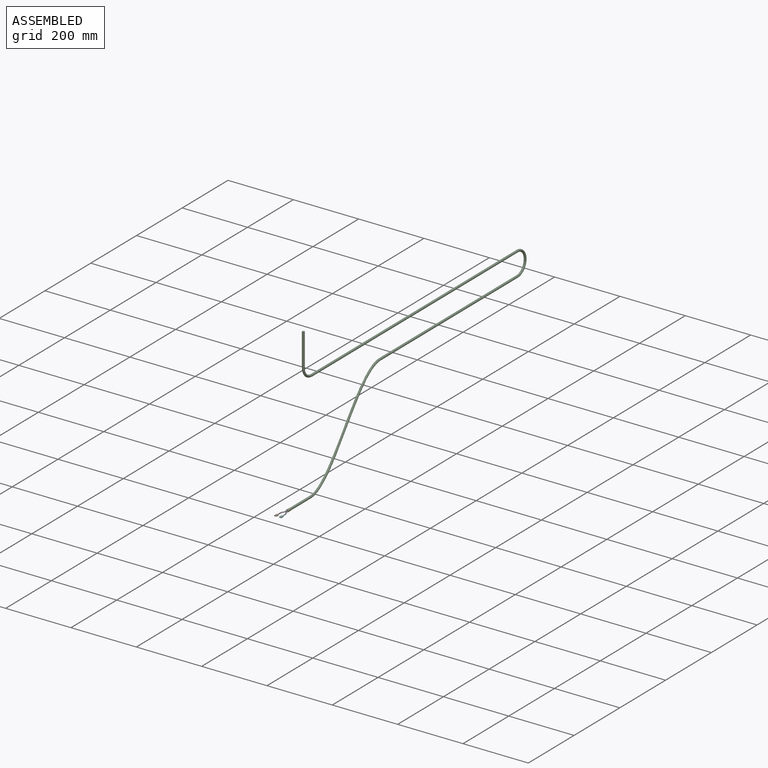
[diagram: assembled view]
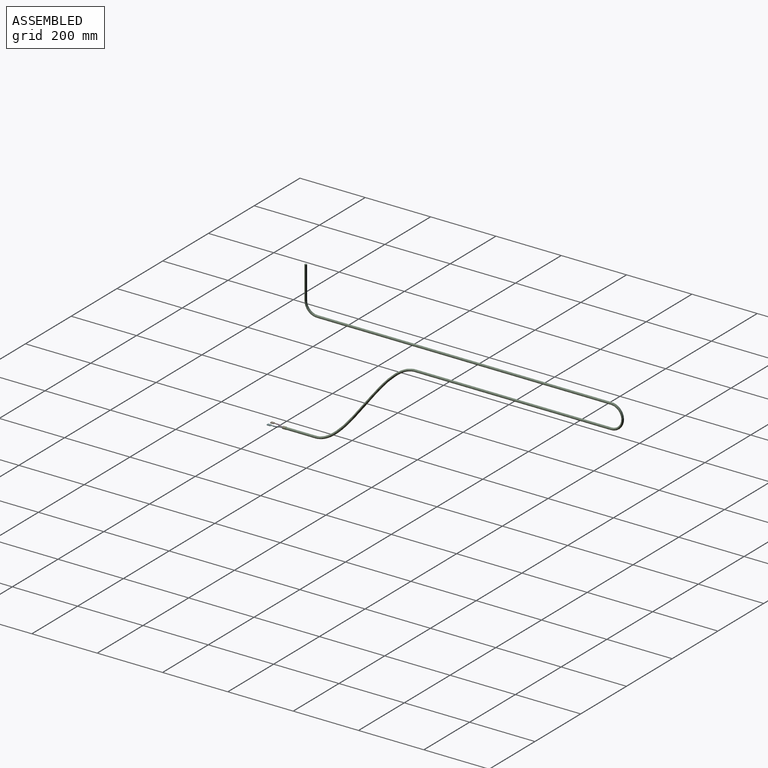
[diagram: assembled view, second angle]
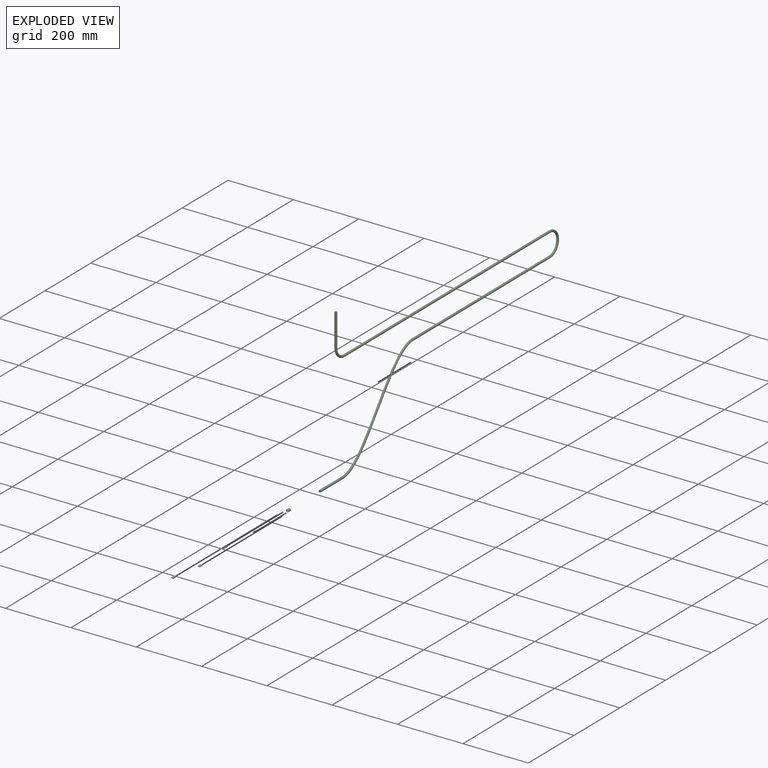
[diagram: exploded view]
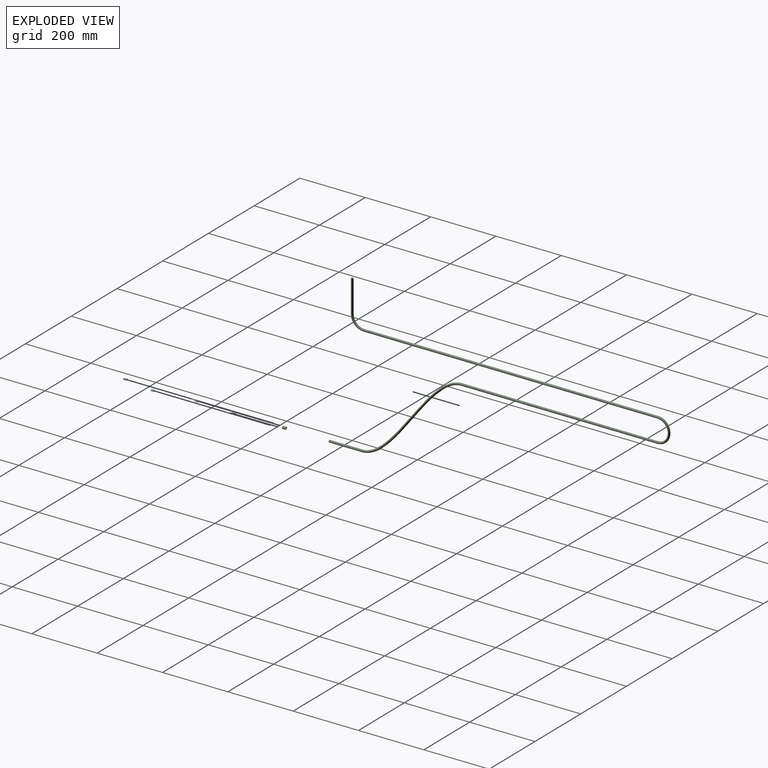
[diagram: exploded view, second angle]
ASSEMBLY  parts=6 mates=4
PART A: 3 faces, bbox 8.5x6x25 mm
  f0: plane 3x3mm, normal (0,0,-1), area 7.1mm2, adj f2
  f1: plane 3x3mm, normal (0,0,1), area 7.1mm2, adj f2
  f2: bspline ~25x8.5mm, area 248.5mm2, adj f0,f1
PART B: 63 faces, bbox 7.5x17x2.8 mm
  f0: plane 2.75x0.25mm, normal (0,1,0), area 0.6mm2, adj f5,f6,f54,f60
  f1: plane 2.75x0.25mm, normal (0,1,0), area 0.6mm2, adj f5,f6,f28,f60
  f2: plane 0.83x0.6mm, normal (0,1,0), area 0.2mm2, adj f11,f22,f23,f60
  f3: plane 0.83x0.6mm, normal (0,1,0), area 0.2mm2, adj f37,f47,f48,f60
  f4: plane 5.5x0.25mm, normal (0,-1,0), area 1.4mm2, adj f5,f6,f29,f53
  f5: plane 10x5.5mm, normal (0,0,-1), area 55mm2, adj f0,f1,f4,f30,f55
  f6: plane 10x5.5mm, normal (0,0,1), area 55mm2, adj f0,f1,f4,f31,f56,f57,f58
  f7: plane 0.75x0.25mm, normal (0,1,0), area 0.2mm2, adj f9,f10,f25,f28
  f8: plane 0.75x0.25mm, normal (0,-1,0), area 0.2mm2, adj f9,f10,f24,f29
  f9: plane 10x0.75mm, normal (-1,0,0), area 7.5mm2, adj f7,f8,f26,f30
  f10: plane 10x0.75mm, normal (1,0,0), area 7.5mm2, adj f7,f8,f27,f31
  f11: plane 1.25x0.25mm, normal (0,1,0), area 0.3mm2, adj f2,f13,f14,f25
  f12: plane 1.25x0.25mm, normal (0,-1,0), area 0.3mm2, adj f13,f14,f20,f24
  f13: plane 10x1.25mm, normal (0,0,1), area 12.5mm2, adj f11,f12,f22,f26
  f14: plane 10x1.25mm, normal (0,0,-1), area 12.5mm2, adj f11,f12,f23,f27
  f15: plane 0.5x0.25mm, normal (0,1,0), area 0.1mm2, adj f17,f18,f19,f21
  f16: plane 0.5x0.25mm, normal (0,-1,0), area 0.1mm2, adj f17,f18,f19,f20
  f17: plane 10x0.25mm, normal (0,0,-1), area 2.5mm2, adj f15,f16,f18,f19
  f18: plane 10x0.5mm, normal (1,0,0), area 5mm2, adj f15,f16,f17,f22
  f19: plane 10x0.5mm, normal (-1,0,0), area 5mm2, adj f15,f16,f17,f23
  f20: plane 1x1mm, normal (0,-1,0), area 0.3mm2, adj f12,f16,f22,f23
  f21: plane 0.33x0.26mm, normal (0,1,0), area 0.1mm2, adj f15,f22,f23,f61
  f22: cylinder r=1mm len=10mm, axis (0,-1,0), area 15.7mm2, adj f2,f13,f18,f20,f21,f59
  f23: cylinder r=0.75mm len=10mm, axis (0,-1,0), area 11.8mm2, adj f2,f14,f19,f20,f21,f57
  f24: plane 1x1mm, normal (0,-1,0), area 0.3mm2, adj f8,f12,f26,f27
  f25: plane 1x1mm, normal (0,1,0), area 0.3mm2, adj f7,f11,f26,f27
  f26: cylinder r=1mm len=10mm, axis (0,-1,0), area 15.7mm2, adj f9,f13,f24,f25
  f27: cylinder r=0.75mm len=10mm, axis (0,-1,0), area 11.8mm2, adj f10,f14,f24,f25
  f28: plane 1x1mm, normal (0,1,0), area 0.3mm2, adj f1,f7,f30,f31
  f29: plane 1x1mm, normal (0,-1,0), area 0.3mm2, adj f4,f8,f30,f31
  f30: cylinder r=1mm len=10mm, axis (0,1,0), area 15.7mm2, adj f5,f9,f28,f29
  f31: cylinder r=0.75mm len=10mm, axis (0,1,0), area 11.8mm2, adj f6,f10,f28,f29
  f32: plane 0.75x0.25mm, normal (0,-1,0), area 0.2mm2, adj f34,f35,f50,f53
  f33: plane 0.75x0.25mm, normal (0,1,0), area 0.2mm2, adj f34,f35,f49,f54
  f34: plane 10x0.75mm, normal (1,0,0), area 7.5mm2, adj f32,f33,f51,f55
  f35: plane 10x0.75mm, normal (-1,0,0), area 7.5mm2, adj f32,f33,f52,f56
  f36: plane 1.25x0.25mm, normal (0,-1,0), area 0.3mm2, adj f38,f39,f46,f50
  f37: plane 1.25x0.25mm, normal (0,1,0), area 0.3mm2, adj f3,f38,f39,f49
  f38: plane 10x1.25mm, normal (0,0,1), area 12.5mm2, adj f36,f37,f47,f51
  f39: plane 10x1.25mm, normal (0,0,-1), area 12.5mm2, adj f36,f37,f48,f52
  f40: plane 0.5x0.25mm, normal (0,-1,0), area 0.1mm2, adj f42,f43,f44,f46
  f41: plane 0.5x0.25mm, normal (0,1,0), area 0.1mm2, adj f42,f43,f44,f45
  f42: plane 10x0.25mm, normal (0,0,-1), area 2.5mm2, adj f40,f41,f43,f44
  f43: plane 10x0.5mm, normal (-1,0,0), area 5mm2, adj f40,f41,f42,f47
  f44: plane 10x0.5mm, normal (1,0,0), area 5mm2, adj f40,f41,f42,f48
  f45: plane 0.33x0.26mm, normal (0,1,0), area 0.1mm2, adj f41,f47,f48,f61
  f46: plane 1x1mm, normal (0,-1,0), area 0.3mm2, adj f36,f40,f47,f48
  f47: cylinder r=1mm len=10mm, axis (0,1,0), area 15.7mm2, adj f3,f38,f43,f45,f46,f59
  f48: cylinder r=0.75mm len=10mm, axis (0,1,0), area 11.8mm2, adj f3,f39,f44,f45,f46,f58
  f49: plane 1x1mm, normal (0,1,0), area 0.3mm2, adj f33,f37,f51,f52
  f50: plane 1x1mm, normal (0,-1,0), area 0.3mm2, adj f32,f36,f51,f52
  f51: cylinder r=1mm len=10mm, axis (0,1,0), area 15.7mm2, adj f34,f38,f49,f50
  f52: cylinder r=0.75mm len=10mm, axis (0,1,0), area 11.8mm2, adj f35,f39,f49,f50
  f53: plane 1x1mm, normal (0,-1,0), area 0.3mm2, adj f4,f32,f55,f56
  f54: plane 1x1mm, normal (0,1,0), area 0.3mm2, adj f0,f33,f55,f56
  f55: cylinder r=1mm len=10mm, axis (0,-1,0), area 15.7mm2, adj f5,f34,f53,f54
  f56: cylinder r=0.75mm len=10mm, axis (0,-1,0), area 11.8mm2, adj f6,f35,f53,f54
  f57: plane 1.9x1.25mm, normal (0,-1,0), area 0.5mm2, adj f6,f23,f60,f61
  f58: plane 1.9x1.25mm, normal (0,-1,0), area 0.5mm2, adj f6,f48,f60,f61
  f59: plane 1.34x0.42mm, normal (0,-1,0), area 0.3mm2, adj f22,f47,f60,f61
  f60: cylinder r=1.25mm len=7mm, axis (0,-1,0), area 55mm2, adj f0,f1,f2,f3,f57,f58,f59,f62
  f61: cylinder r=1mm len=7mm, axis (0,-1,0), area 44mm2, adj f21,f45,f57,f58,f59,f62
  f62: plane 2.5x2.5mm, normal (0,1,0), area 1.8mm2, adj f60,f61
PART C: 9 faces, bbox 473.5x14x1046.7 mm
  f0: plane 7x7mm, normal (0,0,1), area 38.5mm2, adj f2
  f1: plane 7x7mm, normal (1,0,0), area 38.5mm2, adj f8
  f2: cylinder r=3.5mm len=100mm, axis (0,0,-1), area 2199.1mm2, adj f0,f3
  f3: bspline ~305x272mm, area 9130.3mm2, adj f2,f4
  f4: cylinder r=3.5mm len=600mm, axis (0,0,-1), area 13194.7mm2, adj f3,f5
  f5: torus R=35mm, axis (0,-1,0), area 2418.1mm2, adj f4,f6
  f6: cylinder r=3.5mm len=900mm, axis (0,0,1), area 19792mm2, adj f5,f7
  f7: torus R=35mm, axis (0,1,0), area 1209mm2, adj f6,f8
  f8: cylinder r=3.5mm len=100mm, axis (1,0,0), area 2199.1mm2, adj f1,f7
PART D: 3 faces, bbox 8.5x6x25 mm
  f0: plane 3x3mm, normal (0,0,-1), area 7.1mm2, adj f2
  f1: plane 3x3mm, normal (0,0,1), area 7.1mm2, adj f2
  f2: bspline ~25x8.5mm, area 248.5mm2, adj f0,f1
PART E: 4 faces, bbox 8x8x10 mm
  f0: cylinder r=3.5mm len=10mm, axis (0,0,1), area 219.9mm2, adj f2,f3
  f1: cylinder r=4mm len=10mm, axis (0,0,1), area 251.3mm2, adj f2,f3
  f2: plane 8x8mm, normal (0,0,-1), area 11.8mm2, adj f0,f1
  f3: plane 8x8mm, normal (0,0,1), area 11.8mm2, adj f0,f1
PART F: same geometry as B
PLACE A rot(axis=(0,0.71,-0.71),180deg) t=(-125.6,-159.86,-48.9)mm
PLACE B rot(axis=(0,1,0),180deg) t=(-130.1,-191.86,-47.65)mm
PLACE C rot(axis=(0.58,-0.58,0.58),120deg) t=(-126.1,-159.86,-48.9)mm
PLACE D rot(axis=(0,0.71,-0.71),180deg) t=(-126.6,-159.86,-48.9)mm
PLACE E rot(axis=(0,0.71,-0.71),180deg) t=(-126.1,-159.86,-48.9)mm
PLACE F rot(axis=(0,1,0),180deg) t=(-115.1,-191.86,-47.65)mm
MATE fastened D.f0 <-> E.f3  axis (0,1,0) through (-128.1,-159.86,-48.9)mm
MATE fastened C.f2 <-> E.f0  axis (0,-1,0) through (-126.1,-159.86,-48.9)mm
MATE fastened A.f1 <-> F.f60  axis (0,-1,0) through (-118.6,-184.86,-48.9)mm
MATE fastened D.f1 <-> B.f60  axis (0,-1,0) through (-133.6,-184.86,-48.9)mm
